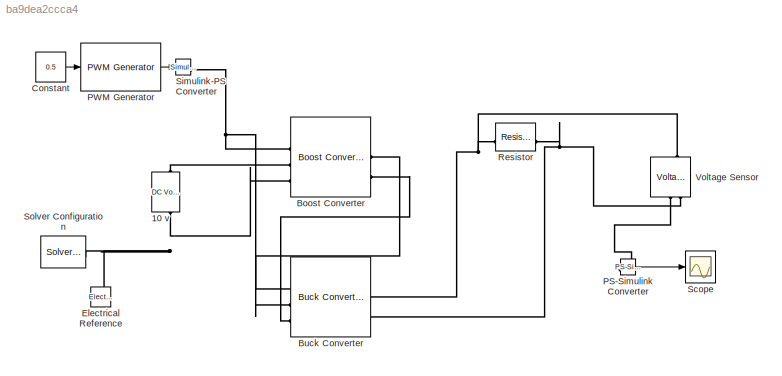
MODEL slx_ba9dea2ccca4
KIND model
CONFIG AbsTol = auto
CONFIG EnableMultiTasking = off
CONFIG FixedStep = auto
CONFIG MaxStep = auto
CONFIG MinStep = auto
CONFIG RelTol = 1e-3
CONFIG SampleTimeConstraint = Unconstrained
CONFIG SolverName = ode23t
CONFIG StartTime = 0.0
CONFIG StopTime = 0.5
BLOCK [Reference] 10 v  REF=fl_lib/Electrical/Electrical Sources/DC Voltage Source
  NameLocation = right
  SourceBlock = fl_lib/Electrical/Electrical Sources/DC Voltage Source
  SourceType = DC Voltage Source
BLOCK [Reference] Boost Converter  REF=ee_lib/Semiconductors &
Converters/Converters/Boost Converter
  SourceBlock = ee_lib/Semiconductors &\nConverters/Converters/Boost Converter
  SourceType = Boost Converter
BLOCK [Reference] Buck Converter  REF=ee_lib/Semiconductors &
Converters/Converters/Buck Converter
  SourceBlock = ee_lib/Semiconductors &\nConverters/Converters/Buck Converter
  SourceType = Buck Converter
BLOCK [Constant] Constant
  Value = 0.5
BLOCK [Reference] Electrical Reference  REF=fl_lib/Electrical/Electrical Elements/Electrical Reference
  LibrarySourceBlock = ee_lib/Connectors &\nReferences/Electrical Reference
  NameLocation = right
  SourceBlock = fl_lib/Electrical/Electrical Elements/Electrical Reference
  SourceType = Electrical Reference
BLOCK [Reference] PS-Simulink Converter  REF=nesl_utility/PS-Simulink
Converter
  SourceBlock = nesl_utility/PS-Simulink\nConverter
  SourceType = PS-Simulink\nConverter
BLOCK [Reference] PWM Generator  REF=eePwmGenerator/PWM Generator
  LibrarySourceBlock = ee_sl_lib/Pulse Width\nModulation/PWM Generator
  SourceBlock = eePwmGenerator/PWM Generator
  SourceType = PWM Generator
BLOCK [Reference] Resistor  REF=fl_lib/Electrical/Electrical Elements/Resistor
  SourceBlock = fl_lib/Electrical/Electrical Elements/Resistor
  SourceType = Resistor
BLOCK [Scope] Scope
  Floating = off
  NumInputPorts = 1
  ScopeSpecificationString = Simulink.scopes.TimeScopeBlockCfg('CurrentConfiguration', extmgr.ConfigurationSet(extmgr.Configuration('Core','General UI',true),extmgr.Configuration('Core','Source UI',true),extmgr.Configuration('Sources','WiredSimulink',true),extmgr.Configuration('Visuals','Time Domain',true,'SerializedDisplays',{struct('MinYLimReal','-1.63317','MaxYLimReal','14.6985','YLabelReal','','MinYLimMag','0.00000','MaxY...<+1440ch>
BLOCK [Reference] Simulink-PS Converter  REF=nesl_utility/Simulink-PS
Converter
  SourceBlock = nesl_utility/Simulink-PS\nConverter
  SourceType = Simulink-PS\nConverter
BLOCK [Reference] Solver Configuration  REF=nesl_utility/Solver
Configuration
  SourceBlock = nesl_utility/Solver\nConfiguration
  SourceType = Solver\nConfiguration
BLOCK [Reference] Voltage Sensor  REF=fl_lib/Electrical/Electrical Sensors/Voltage Sensor
  NameLocation = right
  SourceBlock = fl_lib/Electrical/Electrical Sensors/Voltage Sensor
  SourceType = Voltage Sensor
LINE Constant:1 -> PWM Generator:1
LINE PS-Simulink Converter:1 -> Scope:1
LINE PWM Generator:1 -> Simulink-PS Converter:1
PLINE 10 v:LConn1 -- Boost Converter:LConn2
PNET net1: 10 v:RConn1 -- Boost Converter:LConn3 -- Electrical Reference:LConn1 -- Solver Configuration:RConn1
PNET net2: Boost Converter:LConn1 -- Buck Converter:LConn1 -- Simulink-PS Converter:RConn1
PLINE Boost Converter:RConn1 -- Buck Converter:LConn2
PLINE Boost Converter:RConn2 -- Buck Converter:LConn3
PNET net3: Buck Converter:RConn1 -- Resistor:LConn1 -- Voltage Sensor:LConn1
PNET net4: Buck Converter:RConn2 -- Resistor:RConn1 -- Voltage Sensor:RConn2
PLINE PS-Simulink Converter:LConn1 -- Voltage Sensor:RConn1
note: PNET lines group multi-terminal physical nets as a canonical sorted terminal list (undirected conserving connections); 2-terminal nets keep the pairwise PLINE form
